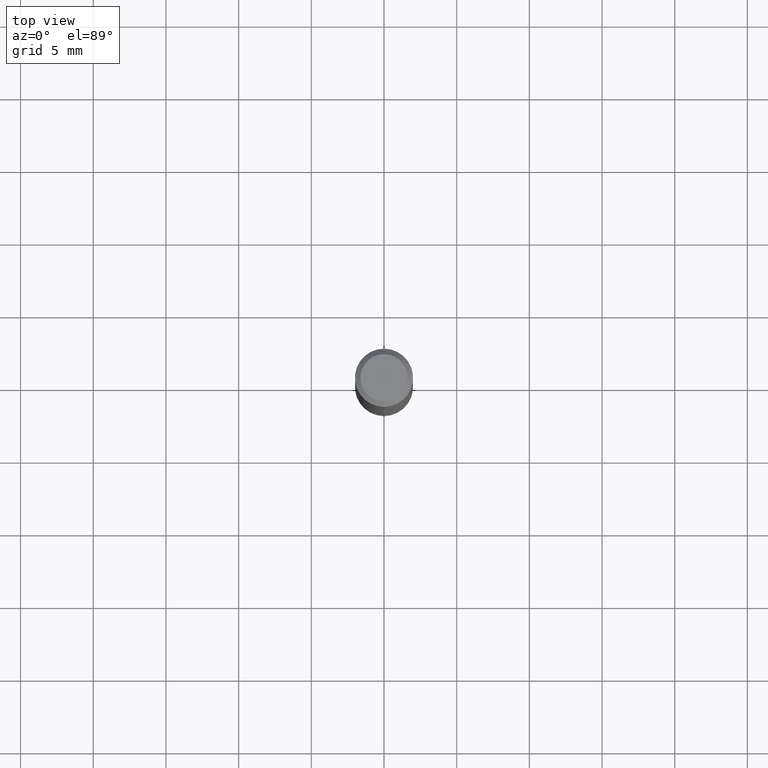
[diagram: clean part render]
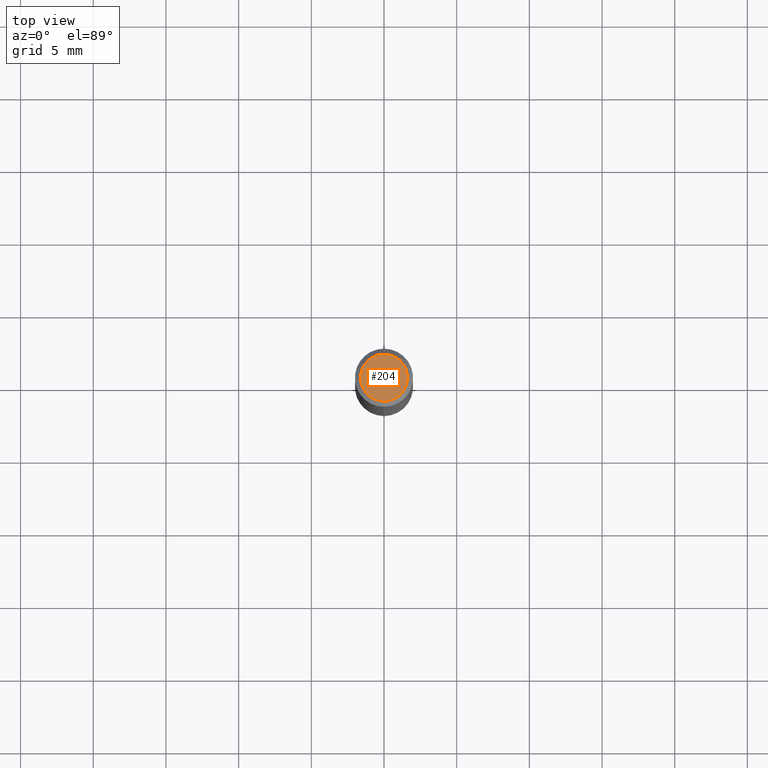
[diagram: same view with one face highlighted and labeled with its STEP entity id]
A machine part, top view. The second image highlights one B-rep face of the part: STEP entity #204.
In plain terms, the highlighted planar face has unit normal (0, -0, -1).
Its self-contained STEP definition (entity closure, byte-faithful):
#16 = DIRECTION ( 'NONE',  ( -6.982962677686264344E-15, -1.000000000000000000, 3.490852318197869243E-15 ) ) ;
#44 = VERTEX_POINT ( 'NONE', #146 ) ;
#68 = AXIS2_PLACEMENT_3D ( 'NONE', #234, #392, #308 ) ;
#87 = CARTESIAN_POINT ( 'NONE',  ( -1.700314702926918523E-45, 2.426725536520685702E-31, 6.951670581623077474E-17 ) ) ;
#127 = EDGE_CURVE ( 'NONE', #229, #44, #251, .T. ) ;
#131 = AXIS2_PLACEMENT_3D ( 'NONE', #267, #505, #139 ) ;
#139 = DIRECTION ( 'NONE',  ( -6.982962677686264344E-15, -1.000000000000000000, 3.490852318197869243E-15 ) ) ;
#146 = CARTESIAN_POINT ( 'NONE',  ( -4.888104823412213911E-16, -0.06375000000000000111, 2.920585411013450524E-16 ) ) ;
#159 = EDGE_LOOP ( 'NONE', ( #247, #192 ) ) ;
#192 = ORIENTED_EDGE ( 'NONE', *, *, #413, .T. ) ;
#199 = FACE_OUTER_BOUND ( 'NONE', #159, .T. ) ;
#204 = ADVANCED_FACE ( 'NONE', ( #199 ), #228, .F. ) ;
#228 = PLANE ( 'NONE',  #68 ) ;
#229 = VERTEX_POINT ( 'NONE', #488 ) ;
#234 = CARTESIAN_POINT ( 'NONE',  ( 4.451638707024993845E-16, 0.06375000000000000111, -1.877834823769988410E-16 ) ) ;
#244 = AXIS2_PLACEMENT_3D ( 'NONE', #87, #277, #16 ) ;
#247 = ORIENTED_EDGE ( 'NONE', *, *, #127, .T. ) ;
#251 = CIRCLE ( 'NONE', #131, 0.06375000000000000111 ) ;
#267 = CARTESIAN_POINT ( 'NONE',  ( -1.700314702926918523E-45, 2.426725536520685702E-31, 6.951670581623077474E-17 ) ) ;
#277 = DIRECTION ( 'NONE',  ( -2.445908048954081787E-29, 3.490852318197870426E-15, 1.000000000000000000 ) ) ;
#308 = DIRECTION ( 'NONE',  ( 6.982962677686265922E-15, 1.000000000000000000, -3.490852318197870426E-15 ) ) ;
#392 = DIRECTION ( 'NONE',  ( 2.445908048954081227E-29, -3.490852318197870426E-15, -1.000000000000000000 ) ) ;
#413 = EDGE_CURVE ( 'NONE', #44, #229, #479, .T. ) ;
#479 = CIRCLE ( 'NONE', #244, 0.06375000000000000111 ) ;
#488 = CARTESIAN_POINT ( 'NONE',  ( 4.975360907851465623E-16, 0.06375000000000000111, -1.530251294688834536E-16 ) ) ;
#505 = DIRECTION ( 'NONE',  ( -2.445908048954081787E-29, 3.490852318197870426E-15, 1.000000000000000000 ) ) ;